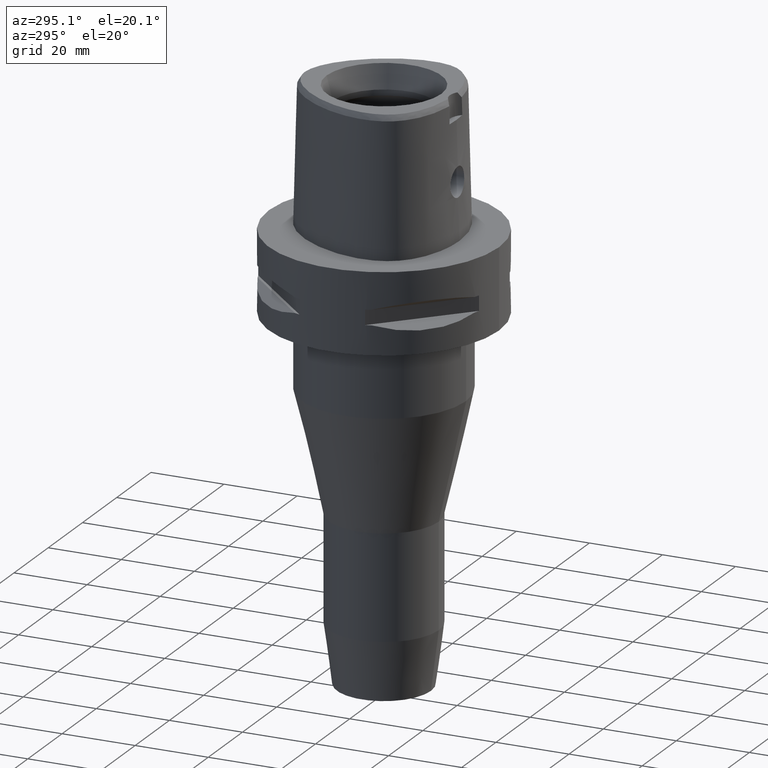
[diagram: clean part render]
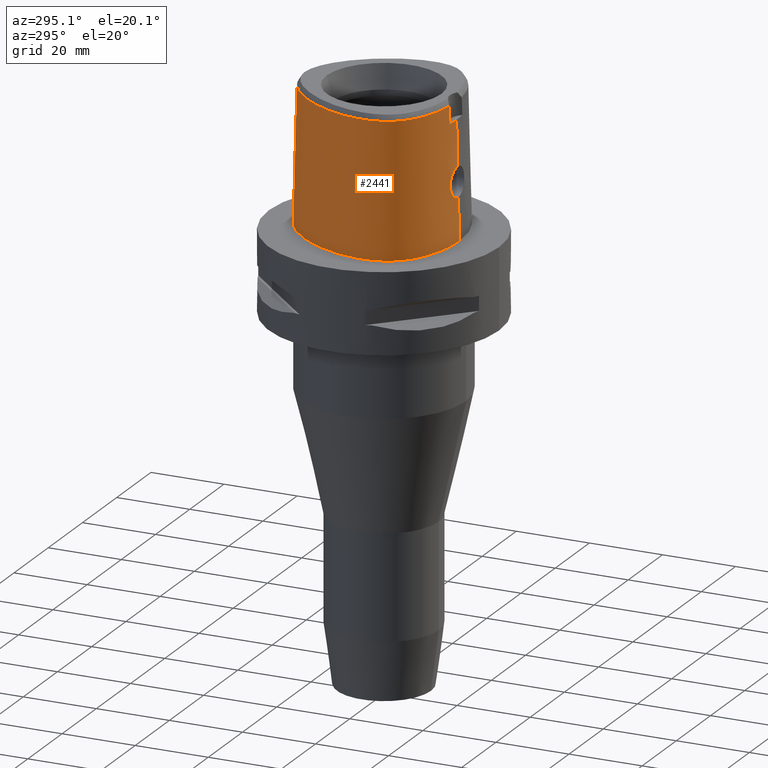
[diagram: same view with one face highlighted and labeled with its STEP entity id]
A machine part, auxiliary view. The second image highlights one B-rep face of the part: STEP entity #2441.
In plain terms, the highlighted face is a freeform B-spline surface patch.
Its self-contained STEP definition (entity closure, byte-faithful):
#193=CARTESIAN_POINT('',(-3.637738201364E0,-1.956971413237E1,3.652186244848E1));
#194=CARTESIAN_POINT('',(-4.537193548749E0,-1.947388025628E1,3.652183529940E1));
#195=CARTESIAN_POINT('',(-6.263949327300E0,-1.921705533810E1,3.652188275785E1));
#196=CARTESIAN_POINT('',(-8.618348519195E0,-1.866798246127E1,3.652185435558E1));
#197=CARTESIAN_POINT('',(-1.060495987192E1,-1.803591213796E1,3.652187576284E1));
#198=CARTESIAN_POINT('',(-1.237067197268E1,-1.732224180535E1,3.652186578478E1));
#199=CARTESIAN_POINT('',(-1.397879260867E1,-1.651413441729E1,3.652186958408E1));
#200=CARTESIAN_POINT('',(-1.542598734321E1,-1.561794019751E1,3.652186521884E1));
#201=CARTESIAN_POINT('',(-1.666737764108E1,-1.467523813454E1,3.652187203924E1));
#202=CARTESIAN_POINT('',(-1.770437627941E1,-1.371528573410E1,3.652187045980E1));
#203=CARTESIAN_POINT('',(-1.857115067472E1,-1.273500788223E1,3.652185855755E1));
#204=CARTESIAN_POINT('',(-1.928442601399E1,-1.174002544139E1,3.652191157147E1));
#205=CARTESIAN_POINT('',(-1.987313581598E1,-1.070549049556E1,3.652186026166E1));
#206=CARTESIAN_POINT('',(-2.036758263126E1,-9.577945777402E0,3.652186701632E1));
#207=CARTESIAN_POINT('',(-2.077211132407E1,-8.321210405634E0,3.652186884943E1));
#208=CARTESIAN_POINT('',(-2.107213951127E1,-6.924739094355E0,3.652186972068E1));
#209=CARTESIAN_POINT('',(-2.125235437077E1,-5.361729912021E0,3.652186572500E1));
#210=CARTESIAN_POINT('',(-2.128712501331E1,-3.639679101091E0,3.652187070383E1));
#211=CARTESIAN_POINT('',(-2.116359888799E1,-1.830362717074E0,3.652186160276E1));
#212=CARTESIAN_POINT('',(-2.087920510343E1,6.599433238334E-2,3.652187692161E1));
#213=CARTESIAN_POINT('',(-2.040877652441E1,2.125525189010E0,3.652185890485E1));
#214=CARTESIAN_POINT('',(-1.967274178354E1,4.473787407312E0,3.652187262732E1));
#215=CARTESIAN_POINT('',(-1.866988253956E1,6.938059692952E0,3.652184673805E1));
#216=CARTESIAN_POINT('',(-1.743962506899E1,9.380231689227E0,3.652185708733E1));
#217=CARTESIAN_POINT('',(-1.600917705974E1,1.173321275189E1,3.652187236541E1));
#218=CARTESIAN_POINT('',(-1.442910686964E1,1.391946669374E1,3.652185993652E1));
#219=CARTESIAN_POINT('',(-1.275797945687E1,1.587321322918E1,3.652186706717E1));
#220=CARTESIAN_POINT('',(-1.114966267944E1,1.746960453198E1,3.652186916644E1));
#221=CARTESIAN_POINT('',(-9.635940589058E0,1.875774927202E1,3.652186756368E1));
#222=CARTESIAN_POINT('',(-8.129315151765E0,1.984871666943E1,3.652186494854E1));
#223=CARTESIAN_POINT('',(-6.628467072847E0,2.075200188891E1,3.652187174651E1));
#224=CARTESIAN_POINT('',(-5.160069573094E0,2.146250909323E1,3.652187196217E1));
#225=CARTESIAN_POINT('',(-3.761043276653E0,2.198030969111E1,3.652186330563E1));
#226=CARTESIAN_POINT('',(-2.442989062411E0,2.232534208061E1,3.652187666147E1));
#227=CARTESIAN_POINT('',(-1.187263974777E0,2.252095610630E1,3.652179140267E1));
#228=CARTESIAN_POINT('',(-3.966403976592E-1,2.256201468012E1,3.652186680743E1));
#229=CARTESIAN_POINT('',(-1.721534435949E-11,2.256201468012E1,
3.652186680744E1));
#241=CARTESIAN_POINT('',(-3.637738201364E0,-1.956971413237E1,3.652186244848E1));
#242=CARTESIAN_POINT('',(-3.649042726833E0,-1.958170231834E1,3.599710491520E1));
#243=CARTESIAN_POINT('',(-3.671106183707E0,-1.960533297179E1,3.494764182412E1));
#244=CARTESIAN_POINT('',(-3.704089539557E0,-1.964135162194E1,3.337369009748E1));
#245=CARTESIAN_POINT('',(-3.726005756395E0,-1.966575923510E1,3.232454432382E1));
#246=CARTESIAN_POINT('',(-3.736696126116E0,-1.967778323257E1,3.18E1));
#251=DIRECTION('',(-1.665636293796E-9,-2.499140646182E-2,-9.996876660253E-1));
#252=VECTOR('',#251,1.225382733632E1);
#253=CARTESIAN_POINT('',(2.041042029991E-8,-1.988004246002E1,3.180000004972E1));
#254=LINE('',#253,#252);
#258=CARTESIAN_POINT('',(0.E0,-2.018628283969E1,1.955E1));
#259=CARTESIAN_POINT('',(-3.535025939874E-1,-2.018628283969E1,1.955E1));
#260=CARTESIAN_POINT('',(-1.060473937797E0,-2.017767216830E1,1.945681925277E1));
#261=CARTESIAN_POINT('',(-2.047701543701E0,-2.014309980526E1,1.904804674692E1));
#262=CARTESIAN_POINT('',(-2.897566485544E0,-2.009784253651E1,1.839607694624E1));
#263=CARTESIAN_POINT('',(-3.549651586842E0,-2.005725832781E1,1.754541454944E1));
#264=CARTESIAN_POINT('',(-3.958413413604E0,-2.003677385322E1,1.655463469819E1));
#265=CARTESIAN_POINT('',(-4.096145834777E0,-2.004693977811E1,1.549746639839E1));
#266=CARTESIAN_POINT('',(-3.956998654836E0,-2.009014971096E1,1.444056005517E1));
#267=CARTESIAN_POINT('',(-3.548403793674E0,-2.016023887783E1,1.345303113610E1));
#268=CARTESIAN_POINT('',(-2.897581606987E0,-2.024315417861E1,1.260386165506E1));
#269=CARTESIAN_POINT('',(-2.045567629948E0,-2.032097908031E1,1.195043067914E1));
#270=CARTESIAN_POINT('',(-1.056750709433E0,-2.037569617876E1,1.154226914409E1));
#271=CARTESIAN_POINT('',(-3.518691721555E-1,-2.038876923348E1,1.145E1));
#272=CARTESIAN_POINT('',(-9.433993878922E-13,-2.038876923348E1,1.145E1));
#277=DIRECTION('',(-5.771735078543E-13,-2.499051295390E-2,-9.996876883619E-1));
#278=VECTOR('',#277,1.145357708542E1);
#279=CARTESIAN_POINT('',(-9.433993878922E-13,-2.038876923348E1,1.145E1));
#280=LINE('',#279,#278);
#342=CARTESIAN_POINT('',(4.563156378706E-11,2.347499999999E1,
5.514107688972E-14));
#343=CARTESIAN_POINT('',(-4.146852565207E-1,2.347499999999E1,
5.514107688972E-14));
#344=CARTESIAN_POINT('',(-1.261915149561E0,2.343213451227E1,
-2.559106284495E-14));
#345=CARTESIAN_POINT('',(-2.581460452462E0,2.322967044429E1,0.E0));
#346=CARTESIAN_POINT('',(-3.964403221928E0,2.287404406542E1,0.E0));
#347=CARTESIAN_POINT('',(-5.417034934790E0,2.234557740741E1,0.E0));
#348=CARTESIAN_POINT('',(-6.944801218035E0,2.162011250783E1,0.E0));
#349=CARTESIAN_POINT('',(-8.547637702665E0,2.067041451708E1,0.E0));
#350=CARTESIAN_POINT('',(-1.021725188597E1,1.946946503500E1,0.E0));
#351=CARTESIAN_POINT('',(-1.193424410327E1,1.799512566976E1,0.E0));
#352=CARTESIAN_POINT('',(-1.366368346013E1,1.623921716908E1,0.E0));
#353=CARTESIAN_POINT('',(-1.535729558670E1,1.421339154148E1,0.E0));
#354=CARTESIAN_POINT('',(-1.695352052941E1,1.195973010079E1,0.E0));
#355=CARTESIAN_POINT('',(-1.839120765518E1,9.545070948090E0,0.E0));
#356=CARTESIAN_POINT('',(-1.962307345157E1,7.045259246555E0,0.E0));
#357=CARTESIAN_POINT('',(-2.061579824793E1,4.546574757563E0,0.E0));
#358=CARTESIAN_POINT('',(-2.135626431495E1,2.129350844778E0,0.E0));
#359=CARTESIAN_POINT('',(-2.185285452040E1,-1.499599148027E-1,0.E0));
#360=CARTESIAN_POINT('',(-2.212727618345E1,-2.257747990068E0,0.E0));
#361=CARTESIAN_POINT('',(-2.220770549127E1,-4.183060399524E0,0.E0));
#362=CARTESIAN_POINT('',(-2.212245961432E1,-5.927659577005E0,0.E0));
#363=CARTESIAN_POINT('',(-2.189663652646E1,-7.503783103471E0,0.E0));
#364=CARTESIAN_POINT('',(-2.155071218654E1,-8.926832611984E0,0.E0));
#365=CARTESIAN_POINT('',(-2.109812849038E1,-1.021628808504E1,0.E0));
#366=CARTESIAN_POINT('',(-2.055277033994E1,-1.138063298656E1,0.E0));
#367=CARTESIAN_POINT('',(-1.990340162624E1,-1.246179278733E1,0.E0));
#368=CARTESIAN_POINT('',(-1.912185559762E1,-1.350622775472E1,0.E0));
#369=CARTESIAN_POINT('',(-1.817671397480E1,-1.453624124549E1,0.E0));
#370=CARTESIAN_POINT('',(-1.705680612492E1,-1.553852109048E1,0.E0));
#371=CARTESIAN_POINT('',(-1.573604956120E1,-1.651128824165E1,0.E0));
#372=CARTESIAN_POINT('',(-1.419106097246E1,-1.744213430450E1,0.E0));
#373=CARTESIAN_POINT('',(-1.240026832212E1,-1.831297475591E1,0.E0));
#374=CARTESIAN_POINT('',(-1.035075458277E1,-1.909801402975E1,0.E0));
#375=CARTESIAN_POINT('',(-8.044393403476E0,-1.976486427995E1,0.E0));
#376=CARTESIAN_POINT('',(-5.509742625065E0,-2.027740112967E1,0.E0));
#377=CARTESIAN_POINT('',(-2.794080716861E0,-2.060118766449E1,
-2.693072922207E-14));
#378=CARTESIAN_POINT('',(-9.426230636249E-1,-2.0675E1,5.802765675374E-14));
#379=CARTESIAN_POINT('',(-7.554100651765E-12,-2.0675E1,5.802765675374E-14));
#1131=DIRECTION('',(1.720264756921E-12,2.499051290963E-2,-9.996876883630E-1));
#1132=VECTOR('',#1131,3.653327657485E1);
#1133=CARTESIAN_POINT('',(-1.721534435949E-11,2.256201468012E1,
3.652186680744E1));
#1134=LINE('',#1133,#1132);
#1148=CARTESIAN_POINT('',(2.041042029991E-8,-1.988004246002E1,
3.180000004972E1));
#1149=CARTESIAN_POINT('',(-4.161790280178E-1,-1.988004245993E1,
3.180000004972E1));
#1150=CARTESIAN_POINT('',(-1.247889105566E0,-1.986528007158E1,
3.179999997680E1));
#1151=CARTESIAN_POINT('',(-2.494485023973E0,-1.979770229313E1,
3.180000000663E1));
#1152=CARTESIAN_POINT('',(-3.322953884429E0,-1.972294683092E1,3.18E1));
#1153=CARTESIAN_POINT('',(-3.736696126116E0,-1.967778323257E1,3.18E1));
#1597=CARTESIAN_POINT('',(-3.736722311399E0,-1.967781602444E1,3.18E1));
#1598=VERTEX_POINT('',#1597);
#1599=VERTEX_POINT('',#241);
#1600=CARTESIAN_POINT('',(-1.721534435949E-11,2.256201468012E1,
3.652186680744E1));
#1601=VERTEX_POINT('',#1600);
#1602=VERTEX_POINT('',#342);
#1603=VERTEX_POINT('',#379);
#1604=VERTEX_POINT('',#1148);
#1605=CARTESIAN_POINT('',(0.E0,-2.018628283969E1,1.955E1));
#1606=VERTEX_POINT('',#1605);
#1607=VERTEX_POINT('',#272);
#2324=CARTESIAN_POINT('',(7.234356454210E-1,2.347140593178E1,
-7.304378836923E-1));
#2325=CARTESIAN_POINT('',(7.042335227556E-1,2.315549812288E1,1.193048543364E1));
#2326=CARTESIAN_POINT('',(6.850314000902E-1,2.283959031397E1,2.459140875097E1));
#2327=CARTESIAN_POINT('',(6.658292774247E-1,2.252368250506E1,3.725233206831E1));
#2328=CARTESIAN_POINT('',(4.823619559444E-1,2.348603818724E1,
-7.304378836923E-1));
#2329=CARTESIAN_POINT('',(4.696382013995E-1,2.316972797308E1,1.193048543364E1));
#2330=CARTESIAN_POINT('',(4.569144468547E-1,2.285341775891E1,2.459140875097E1));
#2331=CARTESIAN_POINT('',(4.441906923099E-1,2.253710754475E1,3.725233206831E1));
#2332=CARTESIAN_POINT('',(-6.149727129627E-1,2.351889465440E1,
-7.304378836923E-1));
#2333=CARTESIAN_POINT('',(-5.985508142242E-1,2.320171269472E1,
1.193048543364E1));
#2334=CARTESIAN_POINT('',(-5.821289154857E-1,2.288453073505E1,
2.459140875097E1));
#2335=CARTESIAN_POINT('',(-5.657070167472E-1,2.256734877538E1,
3.725233206831E1));
#2336=CARTESIAN_POINT('',(-2.568271206828E0,2.331126238893E1,
-7.304378836923E-1));
#2337=CARTESIAN_POINT('',(-2.503210889068E0,2.299958931414E1,1.193048543364E1));
#2338=CARTESIAN_POINT('',(-2.438150571309E0,2.268791623936E1,2.459140875097E1));
#2339=CARTESIAN_POINT('',(-2.373090253549E0,2.237624316457E1,3.725233206831E1));
#2340=CARTESIAN_POINT('',(-5.105252918009E0,2.254305024715E1,
-7.304378836923E-1));
#2341=CARTESIAN_POINT('',(-4.987110638771E0,2.224795273405E1,1.193048543364E1));
#2342=CARTESIAN_POINT('',(-4.868968359533E0,2.195285522095E1,2.459140875097E1));
#2343=CARTESIAN_POINT('',(-4.750826080296E0,2.165775770785E1,3.725233206831E1));
#2344=CARTESIAN_POINT('',(-7.580410842742E0,2.133037926732E1,
-7.304378836923E-1));
#2345=CARTESIAN_POINT('',(-7.420053097307E0,2.105635738375E1,1.193048543364E1));
#2346=CARTESIAN_POINT('',(-7.259695351873E0,2.078233550017E1,2.459140875097E1));
#2347=CARTESIAN_POINT('',(-7.099337606439E0,2.050831361659E1,3.725233206831E1));
#2348=CARTESIAN_POINT('',(-1.075753574145E1,1.918839676145E1,
-7.304378836923E-1));
#2349=CARTESIAN_POINT('',(-1.055288400653E1,1.894467581299E1,1.193048543364E1));
#2350=CARTESIAN_POINT('',(-1.034823227161E1,1.870095486453E1,2.459140875097E1));
#2351=CARTESIAN_POINT('',(-1.014358053668E1,1.845723391608E1,3.725233206831E1));
#2352=CARTESIAN_POINT('',(-1.442198652394E1,1.565278600583E1,
-7.304378836923E-1));
#2353=CARTESIAN_POINT('',(-1.417879752835E1,1.544741190468E1,1.193048543364E1));
#2354=CARTESIAN_POINT('',(-1.393560853276E1,1.524203780353E1,2.459140875097E1));
#2355=CARTESIAN_POINT('',(-1.369241953717E1,1.503666370237E1,3.725233206831E1));
#2356=CARTESIAN_POINT('',(-1.808416038762E1,1.044089487470E1,
-7.304378836923E-1));
#2357=CARTESIAN_POINT('',(-1.780867301356E1,1.028184204664E1,1.193048543364E1));
#2358=CARTESIAN_POINT('',(-1.753318563950E1,1.012278921858E1,2.459140875097E1));
#2359=CARTESIAN_POINT('',(-1.725769826544E1,9.963736390518E0,3.725233206831E1));
#2360=CARTESIAN_POINT('',(-2.076670355397E1,4.663413655735E0,
-7.304378836923E-1));
#2361=CARTESIAN_POINT('',(-2.046725037104E1,4.555493623004E0,1.193048543364E1));
#2362=CARTESIAN_POINT('',(-2.016779718812E1,4.447573590274E0,2.459140875097E1));
#2363=CARTESIAN_POINT('',(-1.986834400520E1,4.339653557543E0,3.725233206831E1));
#2364=CARTESIAN_POINT('',(-2.199640702100E1,-2.778990153336E-1,
-7.304378836923E-1));
#2365=CARTESIAN_POINT('',(-2.168301094001E1,-3.332744162193E-1,
1.193048543364E1));
#2366=CARTESIAN_POINT('',(-2.136961485902E1,-3.886498171051E-1,
2.459140875097E1));
#2367=CARTESIAN_POINT('',(-2.105621877803E1,-4.440252179909E-1,
3.725233206831E1));
#2368=CARTESIAN_POINT('',(-2.226285557050E1,-4.100361500019E0,
-7.304378836923E-1));
#2369=CARTESIAN_POINT('',(-2.194536970998E1,-4.102220499691E0,
1.193048543364E1));
#2370=CARTESIAN_POINT('',(-2.162788384945E1,-4.104079499363E0,
2.459140875097E1));
#2371=CARTESIAN_POINT('',(-2.131039798893E1,-4.105938499035E0,
3.725233206831E1));
#2372=CARTESIAN_POINT('',(-2.207548129619E1,-6.850245536214E0,
-7.304378836923E-1));
#2373=CARTESIAN_POINT('',(-2.176083704478E1,-6.805026033501E0,
1.193048543364E1));
#2374=CARTESIAN_POINT('',(-2.144619279338E1,-6.759806530788E0,
2.459140875097E1));
#2375=CARTESIAN_POINT('',(-2.113154854198E1,-6.714587028075E0,
3.725233206831E1));
#2376=CARTESIAN_POINT('',(-2.157281239753E1,-9.001246196645E0,
-7.304378836923E-1));
#2377=CARTESIAN_POINT('',(-2.126836734855E1,-8.910752225629E0,
1.193048543364E1));
#2378=CARTESIAN_POINT('',(-2.096392229957E1,-8.820258254612E0,
2.459140875097E1));
#2379=CARTESIAN_POINT('',(-2.065947725059E1,-8.729764283595E0,
3.725233206831E1));
#2380=CARTESIAN_POINT('',(-2.094844326333E1,-1.061175397207E1,
-7.304378836923E-1));
#2381=CARTESIAN_POINT('',(-2.065879041560E1,-1.048283616462E1,
1.193048543364E1));
#2382=CARTESIAN_POINT('',(-2.036913756787E1,-1.035391835717E1,
2.459140875097E1));
#2383=CARTESIAN_POINT('',(-2.007948472015E1,-1.022500054972E1,
3.725233206831E1));
#2384=CARTESIAN_POINT('',(-2.036546124956E1,-1.175800453463E1,
-7.304378836923E-1));
#2385=CARTESIAN_POINT('',(-2.009084467378E1,-1.159945458008E1,
1.193048543364E1));
#2386=CARTESIAN_POINT('',(-1.981622809799E1,-1.144090462553E1,
2.459140875097E1));
#2387=CARTESIAN_POINT('',(-1.954161152221E1,-1.128235467098E1,
3.725233206831E1));
#2388=CARTESIAN_POINT('',(-1.966427015040E1,-1.283600704974E1,
-7.304378836923E-1));
#2389=CARTESIAN_POINT('',(-1.940779762651E1,-1.264961922928E1,
1.193048543364E1));
#2390=CARTESIAN_POINT('',(-1.915132510263E1,-1.246323140882E1,
2.459140875097E1));
#2391=CARTESIAN_POINT('',(-1.889485257874E1,-1.227684358836E1,
3.725233206831E1));
#2392=CARTESIAN_POINT('',(-1.858171406959E1,-1.418198046903E1,
-7.304378836923E-1));
#2393=CARTESIAN_POINT('',(-1.835112148799E1,-1.396357030797E1,
1.193048543364E1));
#2394=CARTESIAN_POINT('',(-1.812052890639E1,-1.374516014692E1,
2.459140875097E1));
#2395=CARTESIAN_POINT('',(-1.788993632479E1,-1.352674998587E1,
3.725233206831E1));
#2396=CARTESIAN_POINT('',(-1.697022731427E1,-1.569280483517E1,
-7.304378836923E-1));
#2397=CARTESIAN_POINT('',(-1.677374378320E1,-1.544292467129E1,
1.193048543364E1));
#2398=CARTESIAN_POINT('',(-1.657726025214E1,-1.519304450741E1,
2.459140875097E1));
#2399=CARTESIAN_POINT('',(-1.638077672108E1,-1.494316434353E1,
3.725233206831E1));
#2400=CARTESIAN_POINT('',(-1.468244497373E1,-1.723001773474E1,
-7.304378836923E-1));
#2401=CARTESIAN_POINT('',(-1.452531259520E1,-1.695413741586E1,
1.193048543364E1));
#2402=CARTESIAN_POINT('',(-1.436818021668E1,-1.667825709698E1,
2.459140875097E1));
#2403=CARTESIAN_POINT('',(-1.421104783816E1,-1.640237677809E1,
3.725233206831E1));
#2404=CARTESIAN_POINT('',(-1.123887130428E1,-1.891049776497E1,
-7.304378836923E-1));
#2405=CARTESIAN_POINT('',(-1.113012652954E1,-1.861140108889E1,
1.193048543364E1));
#2406=CARTESIAN_POINT('',(-1.102138175480E1,-1.831230441280E1,
2.459140875097E1));
#2407=CARTESIAN_POINT('',(-1.091263698006E1,-1.801320773672E1,
3.725233206831E1));
#2408=CARTESIAN_POINT('',(-6.344715577603E0,-2.031619965472E1,
-7.304378836923E-1));
#2409=CARTESIAN_POINT('',(-6.288476565481E0,-2.000290563965E1,
1.193048543364E1));
#2410=CARTESIAN_POINT('',(-6.232237553359E0,-1.968961162457E1,
2.459140875097E1));
#2411=CARTESIAN_POINT('',(-6.175998541237E0,-1.937631760950E1,
3.725233206831E1));
#2412=CARTESIAN_POINT('',(-1.886862292502E0,-2.071358860422E1,
-7.304378836923E-1));
#2413=CARTESIAN_POINT('',(-1.870070487669E0,-2.039691384293E1,
1.193048543364E1));
#2414=CARTESIAN_POINT('',(-1.853278682835E0,-2.008023908163E1,
2.459140875097E1));
#2415=CARTESIAN_POINT('',(-1.836486878001E0,-1.976356432033E1,
3.725233206831E1));
#2416=CARTESIAN_POINT('',(4.560943670760E-1,-2.069106768990E1,
-7.304378836923E-1));
#2417=CARTESIAN_POINT('',(4.520368071274E-1,-2.037458452300E1,
1.193048543364E1));
#2418=CARTESIAN_POINT('',(4.479792471788E-1,-2.005810135610E1,
2.459140875097E1));
#2419=CARTESIAN_POINT('',(4.439216872302E-1,-1.974161818921E1,
3.725233206831E1));
#2420=CARTESIAN_POINT('',(6.840430854547E-1,-2.068668155497E1,
-7.304378836923E-1));
#2421=CARTESIAN_POINT('',(6.779535327048E-1,-2.037023514139E1,
1.193048543364E1));
#2422=CARTESIAN_POINT('',(6.718639799549E-1,-2.005378872781E1,
2.459140875097E1));
#2423=CARTESIAN_POINT('',(6.657744272050E-1,-1.973734231423E1,
3.725233206831E1));
#2424=B_SPLINE_SURFACE_WITH_KNOTS('',3,3,((#2324,#2325,#2326,#2327),(#2328,
#2329,#2330,#2331),(#2332,#2333,#2334,#2335),(#2336,#2337,#2338,#2339),(#2340,
#2341,#2342,#2343),(#2344,#2345,#2346,#2347),(#2348,#2349,#2350,#2351),(#2352,
#2353,#2354,#2355),(#2356,#2357,#2358,#2359),(#2360,#2361,#2362,#2363),(#2364,
#2365,#2366,#2367),(#2368,#2369,#2370,#2371),(#2372,#2373,#2374,#2375),(#2376,
#2377,#2378,#2379),(#2380,#2381,#2382,#2383),(#2384,#2385,#2386,#2387),(#2388,
#2389,#2390,#2391),(#2392,#2393,#2394,#2395),(#2396,#2397,#2398,#2399),(#2400,
#2401,#2402,#2403),(#2404,#2405,#2406,#2407),(#2408,#2409,#2410,#2411),(#2412,
#2413,#2414,#2415),(#2416,#2417,#2418,#2419),(#2420,#2421,#2422,#2423)),
.UNSPECIFIED.,.F.,.F.,.F.,(4,1,1,1,1,1,1,1,1,1,1,1,1,1,1,1,1,1,1,1,1,1,4),(4,4),
(-1.173777939046E-2,0.E0,4.166666666737E-2,8.333333333399E-2,1.250000000006E-1,
1.666666666673E-1,2.500000000005E-1,3.333333333337E-1,4.166666666670E-1,
5.000000000003E-1,5.416666666669E-1,5.833333333335E-1,6.250000000001E-1,
6.458333333334E-1,6.666666666668E-1,6.875000000001E-1,7.083333333333E-1,7.5E-1,
7.916666666667E-1,8.333333333332E-1,9.166666666665E-1,1.E0,1.008985696609E0),(
-3.979829035772E-9,1.000000202971E0),.UNSPECIFIED.);
#2426=ORIENTED_EDGE('',*,*,#2425,.F.);
#2428=ORIENTED_EDGE('',*,*,#2427,.F.);
#2429=ORIENTED_EDGE('',*,*,#2317,.F.);
#2430=ORIENTED_EDGE('',*,*,#1802,.T.);
#2432=ORIENTED_EDGE('',*,*,#2431,.F.);
#2434=ORIENTED_EDGE('',*,*,#2433,.T.);
#2436=ORIENTED_EDGE('',*,*,#2435,.T.);
#2438=ORIENTED_EDGE('',*,*,#2437,.T.);
#2439=EDGE_LOOP('',(#2426,#2428,#2429,#2430,#2432,#2434,#2436,#2438));
#2440=FACE_OUTER_BOUND('',#2439,.F.);
#230=B_SPLINE_CURVE_WITH_KNOTS('',3,(#193,#194,#195,#196,#197,#198,#199,#200,
#201,#202,#203,#204,#205,#206,#207,#208,#209,#210,#211,#212,#213,#214,#215,#216,
#217,#218,#219,#220,#221,#222,#223,#224,#225,#226,#227,#228,#229),.UNSPECIFIED.,
.F.,.F.,(4,1,1,1,1,1,1,1,1,1,1,1,1,1,1,1,1,1,1,1,1,1,1,1,1,1,1,1,1,1,1,1,1,1,4),
(0.E0,2.941176470588E-2,5.882352941176E-2,8.823529411765E-2,1.176470588235E-1,
1.470588235294E-1,1.764705882353E-1,2.058823529412E-1,2.352941176471E-1,
2.647058823529E-1,2.941176470588E-1,3.235294117647E-1,3.529411764706E-1,
3.823529411765E-1,4.117647058824E-1,4.411764705882E-1,4.705882352941E-1,5.E-1,
5.294117647059E-1,5.588235294118E-1,5.882352941176E-1,6.176470588235E-1,
6.470588235294E-1,6.764705882353E-1,7.058823529412E-1,7.352941176471E-1,
7.647058823529E-1,7.941176470588E-1,8.235294117647E-1,8.529411764706E-1,
8.823529411765E-1,9.117647058824E-1,9.411764705882E-1,9.705882352941E-1,1.E0),
.UNSPECIFIED.);
#247=B_SPLINE_CURVE_WITH_KNOTS('',3,(#241,#242,#243,#244,#245,#246),
.UNSPECIFIED.,.F.,.F.,(4,1,1,4),(0.E0,3.333333333333E-1,6.666666666667E-1,1.E0),
.UNSPECIFIED.);
#273=B_SPLINE_CURVE_WITH_KNOTS('',3,(#258,#259,#260,#261,#262,#263,#264,#265,
#266,#267,#268,#269,#270,#271,#272),.UNSPECIFIED.,.F.,.F.,(4,1,1,1,1,1,1,1,1,1,
1,1,4),(0.E0,8.333333333333E-2,1.666666666667E-1,2.5E-1,3.333333333333E-1,
4.166666666667E-1,5.E-1,5.833333333333E-1,6.666666666667E-1,7.5E-1,
8.333333333333E-1,9.166666666667E-1,1.E0),.UNSPECIFIED.);
#380=B_SPLINE_CURVE_WITH_KNOTS('',3,(#342,#343,#344,#345,#346,#347,#348,#349,
#350,#351,#352,#353,#354,#355,#356,#357,#358,#359,#360,#361,#362,#363,#364,#365,
#366,#367,#368,#369,#370,#371,#372,#373,#374,#375,#376,#377,#378,#379),
.UNSPECIFIED.,.F.,.F.,(4,1,1,1,1,1,1,1,1,1,1,1,1,1,1,1,1,1,1,1,1,1,1,1,1,1,1,1,
1,1,1,1,1,1,1,4),(0.E0,2.857142857143E-2,5.714285714286E-2,8.571428571429E-2,
1.142857142857E-1,1.428571428571E-1,1.714285714286E-1,2.E-1,2.285714285714E-1,
2.571428571429E-1,2.857142857143E-1,3.142857142857E-1,3.428571428571E-1,
3.714285714286E-1,4.E-1,4.285714285714E-1,4.571428571429E-1,4.857142857143E-1,
5.142857142857E-1,5.428571428571E-1,5.714285714286E-1,6.E-1,6.285714285714E-1,
6.571428571429E-1,6.857142857143E-1,7.142857142857E-1,7.428571428571E-1,
7.714285714286E-1,8.E-1,8.285714285714E-1,8.571428571429E-1,8.857142857143E-1,
9.142857142857E-1,9.428571428571E-1,9.714285714286E-1,1.E0),.UNSPECIFIED.);
#1154=B_SPLINE_CURVE_WITH_KNOTS('',3,(#1148,#1149,#1150,#1151,#1152,#1153),
.UNSPECIFIED.,.F.,.F.,(4,1,1,4),(0.E0,3.333333333333E-1,6.666666666667E-1,1.E0),
.UNSPECIFIED.);
#1802=EDGE_CURVE('',#1599,#1598,#247,.T.);
#2317=EDGE_CURVE('',#1599,#1601,#230,.T.);
#2425=EDGE_CURVE('',#1602,#1603,#380,.T.);
#2427=EDGE_CURVE('',#1601,#1602,#1134,.T.);
#2431=EDGE_CURVE('',#1604,#1598,#1154,.T.);
#2433=EDGE_CURVE('',#1604,#1606,#254,.T.);
#2435=EDGE_CURVE('',#1606,#1607,#273,.T.);
#2437=EDGE_CURVE('',#1607,#1603,#280,.T.);
#2441=ADVANCED_FACE('',(#2440),#2424,.T.);